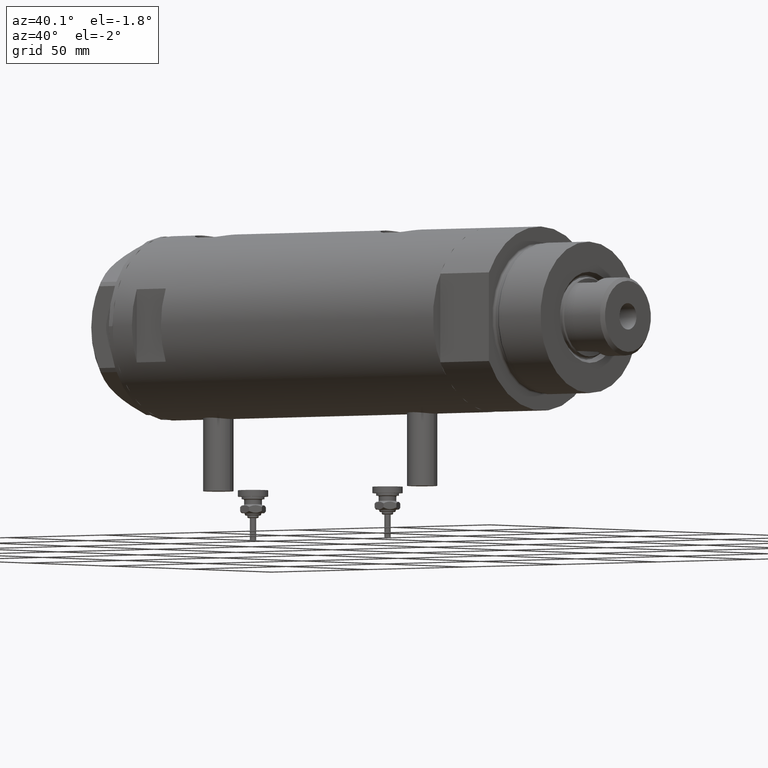
[diagram: clean part render]
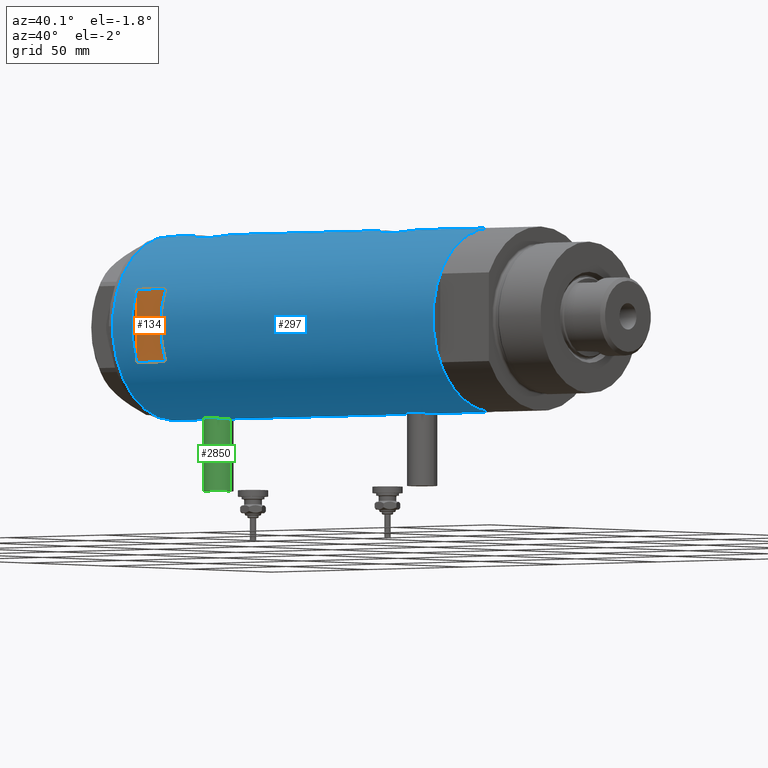
[diagram: same view with three faces highlighted in distinct colors, each labeled with its STEP entity id]
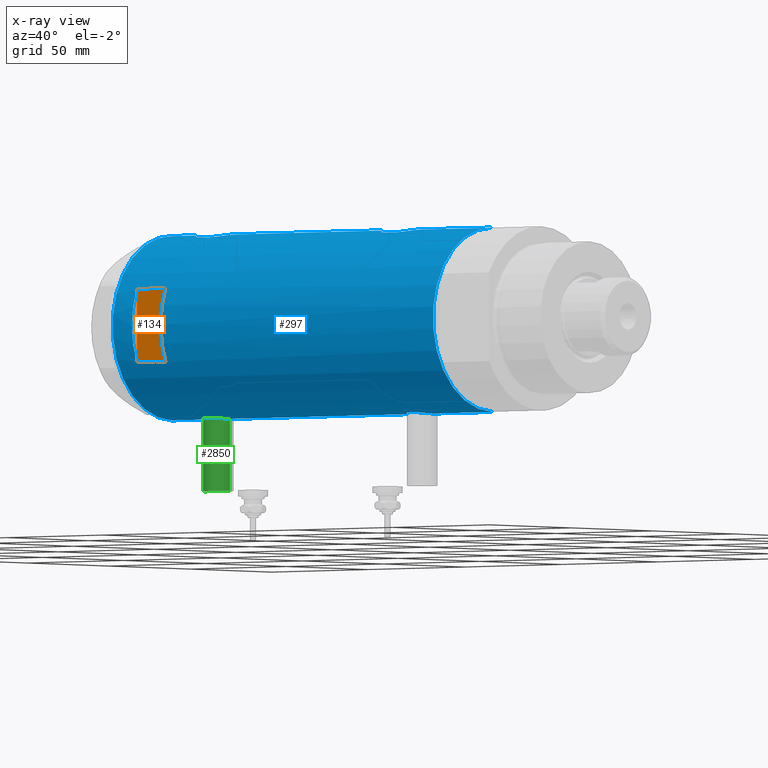
[diagram: x-ray of the same camera — body ghosted, the three highlighted faces saturated]
A machine part, auxiliary view with three faces highlighted in distinct colors.
The next image is the same camera in x-ray (body ghosted, the three faces saturated) — at least one of them is partly hidden behind the body in this view.
Their STEP definitions:

[orange] entity #134 — the highlighted planar face has unit normal (-0, 1, 0).
#134 = ADVANCED_FACE ( 'NONE', ( #2801 ), #2228, .F. ) ;
#329 = EDGE_CURVE ( 'NONE', #1744, #5346, #350, .T. ) ;
#350 = LINE ( 'NONE', #915, #1894 ) ;
#373 = VECTOR ( 'NONE', #2697, 1000.000000000000000 ) ;
#569 = CARTESIAN_POINT ( 'NONE',  ( -14.49137674618942739, -33.50000000000000000, 72.89999999999999147 ) ) ;
#915 = CARTESIAN_POINT ( 'NONE',  ( -36.50000000000000000, -33.50000000000000000, 57.89999999999999147 ) ) ;
#1314 = DIRECTION ( 'NONE',  ( 1.000000000000000000, -0.000000000000000000, -0.000000000000000000 ) ) ;
#1744 = VERTEX_POINT ( 'NONE', #2050 ) ;
#1752 = LINE ( 'NONE', #5413, #373 ) ;
#1778 = CARTESIAN_POINT ( 'NONE',  ( -36.50000000000000000, -33.50000000000000000, 72.89999999999999147 ) ) ;
#1839 = DIRECTION ( 'NONE',  ( 1.000000000000000000, -0.000000000000000000, -0.000000000000000000 ) ) ;
#1894 = VECTOR ( 'NONE', #1314, 1000.000000000000000 ) ;
#1970 = EDGE_CURVE ( 'NONE', #5346, #3064, #1752, .T. ) ;
#2050 = CARTESIAN_POINT ( 'NONE',  ( -14.49137674618942739, -33.50000000000000000, 57.89999999999999147 ) ) ;
#2225 = LINE ( 'NONE', #4998, #5240 ) ;
#2228 = PLANE ( 'NONE',  #2925 ) ;
#2325 = CARTESIAN_POINT ( 'NONE',  ( 14.49137674618942739, -33.50000000000000000, 72.89999999999999147 ) ) ;
#2697 = DIRECTION ( 'NONE',  ( 0.000000000000000000, 0.000000000000000000, 1.000000000000000000 ) ) ;
#2712 = CARTESIAN_POINT ( 'NONE',  ( 14.49137674618942739, -33.50000000000000000, 57.89999999999999147 ) ) ;
#2801 = FACE_OUTER_BOUND ( 'NONE', #4254, .T. ) ;
#2816 = VERTEX_POINT ( 'NONE', #569 ) ;
#2910 = VECTOR ( 'NONE', #1839, 1000.000000000000000 ) ;
#2918 = DIRECTION ( 'NONE',  ( 0.000000000000000000, -0.000000000000000000, 1.000000000000000000 ) ) ;
#2925 = AXIS2_PLACEMENT_3D ( 'NONE', #1778, #4037, #2918 ) ;
#3064 = VERTEX_POINT ( 'NONE', #2325 ) ;
#3330 = ORIENTED_EDGE ( 'NONE', *, *, #329, .T. ) ;
#3909 = ORIENTED_EDGE ( 'NONE', *, *, #4924, .F. ) ;
#4033 = DIRECTION ( 'NONE',  ( -0.000000000000000000, -0.000000000000000000, -1.000000000000000000 ) ) ;
#4037 = DIRECTION ( 'NONE',  ( 0.000000000000000000, 1.000000000000000000, 0.000000000000000000 ) ) ;
#4254 = EDGE_LOOP ( 'NONE', ( #4997, #3330, #5481, #3909 ) ) ;
#4556 = CARTESIAN_POINT ( 'NONE',  ( -36.50000000000000000, -33.50000000000000000, 72.89999999999999147 ) ) ;
#4924 = EDGE_CURVE ( 'NONE', #2816, #3064, #5476, .T. ) ;
#4997 = ORIENTED_EDGE ( 'NONE', *, *, #5229, .T. ) ;
#4998 = CARTESIAN_POINT ( 'NONE',  ( -14.49137674618942739, -33.50000000000000000, -82.90000000000000568 ) ) ;
#5229 = EDGE_CURVE ( 'NONE', #2816, #1744, #2225, .T. ) ;
#5240 = VECTOR ( 'NONE', #4033, 1000.000000000000000 ) ;
#5346 = VERTEX_POINT ( 'NONE', #2712 ) ;
#5413 = CARTESIAN_POINT ( 'NONE',  ( 14.49137674618942739, -33.50000000000000000, -82.90000000000000568 ) ) ;
#5476 = LINE ( 'NONE', #4556, #2910 ) ;
#5481 = ORIENTED_EDGE ( 'NONE', *, *, #1970, .T. ) ;

[blue] entity #297 — the highlighted cylindrical surface (partial cylindrical patch) has radius 36.5 mm, axis along (-1, -0, 0).
#74 = CARTESIAN_POINT ( 'NONE',  ( 36.41918031349423757, -2.473644131148924341, -28.39811654536808661 ) ) ;
#88 = B_SPLINE_CURVE_WITH_KNOTS ( 'NONE', 3,
 ( #3689, #3180, #1775, #2534, #3652, #5108, #881, #996, #1834, #1362, #4068, #2693, #3623, #2359, #4186, #935, #4525, #3157 ),
 .UNSPECIFIED., .F., .F.,
 ( 4, 2, 2, 2, 2, 2, 2, 2, 4 ),
 ( -0.01189883390545606184, -0.008924125429092075873, -0.008180448310001064635, -0.007436771190910053397, -0.005949416952728041330, -0.004462062714546030130, -0.002974708476364018930, -0.001487354238182008598, 0.000000000000000000 ),
 .UNSPECIFIED. ) ;
#108 = DIRECTION ( 'NONE',  ( 0.000000000000000000, 0.000000000000000000, 1.000000000000000000 ) ) ;
#120 = ORIENTED_EDGE ( 'NONE', *, *, #1970, .F. ) ;
#122 = VERTEX_POINT ( 'NONE', #3693 ) ;
#125 = CARTESIAN_POINT ( 'NONE',  ( 35.39807338191550201, -8.909271871950332766, -33.44919617267214562 ) ) ;
#160 = CARTESIAN_POINT ( 'NONE',  ( 36.12724769814495573, -5.207618053557751203, -29.55935879511536157 ) ) ;
#163 = VERTEX_POINT ( 'NONE', #704 ) ;
#168 = EDGE_CURVE ( 'NONE', #122, #5836, #3298, .T. ) ;
#187 = CARTESIAN_POINT ( 'NONE',  ( 36.48988302519020976, -0.9927202255321161406, -28.13673010588698631 ) ) ;
#202 = CARTESIAN_POINT ( 'NONE',  ( 35.29999999999999716, -9.282241108697837362, -82.90000000000000568 ) ) ;
#203 = CARTESIAN_POINT ( 'NONE',  ( -35.99695583620881223, -6.039273428153914658, -48.22224444987753600 ) ) ;
#210 = CARTESIAN_POINT ( 'NONE',  ( -36.19666146462961365, -4.704890678739097609, 54.76570140489218375 ) ) ;
#221 = CARTESIAN_POINT ( 'NONE',  ( 35.29999999999999716, -9.282241108697837362, -41.82021504754764862 ) ) ;
#233 = AXIS2_PLACEMENT_3D ( 'NONE', #4261, #3284, #3336 ) ;
#234 = CARTESIAN_POINT ( 'NONE',  ( -36.19666146462958523, -4.704890678739107379, -50.73429859510781625 ) ) ;
#280 = CARTESIAN_POINT ( 'NONE',  ( -36.44621655743048905, -2.016281777336080161, 52.97017023300883665 ) ) ;
#297 = ADVANCED_FACE ( 'NONE', ( #4333, #3413 ), #1127, .T. ) ;
#311 = CARTESIAN_POINT ( 'NONE',  ( -36.39621039793029666, -2.776267550998798850, 64.51430753106778582 ) ) ;
#312 = CARTESIAN_POINT ( 'NONE',  ( 36.18674680775578167, -4.776679548204628922, 66.68892316931247422 ) ) ;
#336 = ORIENTED_EDGE ( 'NONE', *, *, #1621, .F. ) ;
#351 = CARTESIAN_POINT ( 'NONE',  ( 36.50000000000000000, -0.5031001875915698252, 47.89999999999999858 ) ) ;
#355 = DIRECTION ( 'NONE',  ( 0.000000000000000000, 0.000000000000000000, 1.000000000000000000 ) ) ;
#373 = VECTOR ( 'NONE', #2697, 1000.000000000000000 ) ;
#447 = DIRECTION ( 'NONE',  ( 1.000000000000000000, 0.000000000000000000, 0.000000000000000000 ) ) ;
#475 = DIRECTION ( 'NONE',  ( 0.000000000000000000, 0.000000000000000000, 1.000000000000000000 ) ) ;
#508 = CARTESIAN_POINT ( 'NONE',  ( 36.00068527486602221, -6.030855700422095289, 49.90798672872647046 ) ) ;
#569 = CARTESIAN_POINT ( 'NONE',  ( -14.49137674618942739, -33.50000000000000000, 72.89999999999999147 ) ) ;
#582 = CARTESIAN_POINT ( 'NONE',  ( 36.09633718678917091, -5.417295330713080226, -29.69085132654786463 ) ) ;
#583 = LINE ( 'NONE', #2427, #1102 ) ;
#602 = CARTESIAN_POINT ( 'NONE',  ( 35.79638309643554095, -7.141827709208429020, -31.08298073030451292 ) ) ;
#614 = EDGE_CURVE ( 'NONE', #3439, #1837, #2611, .T. ) ;
#632 = CARTESIAN_POINT ( 'NONE',  ( 36.29582892817135331, -3.881628320031160762, 67.12934434534989236 ) ) ;
#634 = CARTESIAN_POINT ( 'NONE',  ( 36.18674680775576746, -4.776679548204623593, -29.31107683068752223 ) ) ;
#655 = CARTESIAN_POINT ( 'NONE',  ( -36.02823773219771653, -5.849994928883562650, -48.80955101485645287 ) ) ;
#661 = CARTESIAN_POINT ( 'NONE',  ( 35.93373217836898448, -6.415110096330619349, 65.58704266355093182 ) ) ;
#680 = EDGE_CURVE ( 'NONE', #3439, #5836, #4505, .T. ) ;
#681 = CARTESIAN_POINT ( 'NONE',  ( -35.98821803976953504, -6.090959022952123547, -45.18426116850582730 ) ) ;
#704 = CARTESIAN_POINT ( 'NONE',  ( 36.50000000000000000, 0.000000000000000000, -82.90000000000000568 ) ) ;
#718 = CARTESIAN_POINT ( 'NONE',  ( -35.98855750525640929, -6.088954600884540547, -48.02430226150165993 ) ) ;
#727 = CARTESIAN_POINT ( 'NONE',  ( 35.29999999999999716, -9.282241108697837362, 61.62021504754764578 ) ) ;
#789 = CARTESIAN_POINT ( 'NONE',  ( -36.36656776002987357, -3.137002187003164799, -41.17863590726366851 ) ) ;
#800 = CARTESIAN_POINT ( 'NONE',  ( -36.50000000000000000, 4.469960816887838430E-15, -82.90000000000000568 ) ) ;
#825 = CARTESIAN_POINT ( 'NONE',  ( -36.44454782745417276, -2.020757099930493350, 64.81785864420996290 ) ) ;
#880 = CARTESIAN_POINT ( 'NONE',  ( -36.46417279006303858, -1.628689148039105250, -40.56246061306183748 ) ) ;
#881 = CARTESIAN_POINT ( 'NONE',  ( 35.83108131285855791, -6.958268797611352419, -45.28630783372827295 ) ) ;
#934 = CARTESIAN_POINT ( 'NONE',  ( 0.000000000000000000, 0.000000000000000000, 72.89999999999999147 ) ) ;
#935 = CARTESIAN_POINT ( 'NONE',  ( 36.48960339336945680, -1.002724032967599488, -48.06224865973496208 ) ) ;
#991 = VERTEX_POINT ( 'NONE', #2920 ) ;
#996 = CARTESIAN_POINT ( 'NONE',  ( 35.93363298843767950, -6.415574104180970849, -45.78651472888893181 ) ) ;
#1032 = EDGE_CURVE ( 'NONE', #5824, #5128, #3024, .T. ) ;
#1062 = DIRECTION ( 'NONE',  ( 0.000000000000000000, 0.000000000000000000, 1.000000000000000000 ) ) ;
#1085 = CARTESIAN_POINT ( 'NONE',  ( -36.35061318816139675, -3.303361544904985347, -51.90964041943019680 ) ) ;
#1102 = VECTOR ( 'NONE', #1961, 1000.000000000000000 ) ;
#1117 = AXIS2_PLACEMENT_3D ( 'NONE', #934, #3597, #447 ) ;
#1119 = CARTESIAN_POINT ( 'NONE',  ( -36.50000000000000000, -0.4082012689449559528, 52.65000000000000568 ) ) ;
#1120 = CARTESIAN_POINT ( 'NONE',  ( 36.34247810649305421, -3.420510937483963065, 67.30986518401726926 ) ) ;
#1127 = CYLINDRICAL_SURFACE ( 'NONE', #1423, 36.50000000000000000 ) ;
#1130 = ORIENTED_EDGE ( 'NONE', *, *, #2977, .T. ) ;
#1150 = CARTESIAN_POINT ( 'NONE',  ( -35.96816095843705341, -6.208699946936208747, -47.42496377127785223 ) ) ;
#1157 = CARTESIAN_POINT ( 'NONE',  ( -35.96816095843706762, -6.208699946936197200, 58.07503622872215487 ) ) ;
#1159 = VERTEX_POINT ( 'NONE', #2387 ) ;
#1244 = VECTOR ( 'NONE', #3077, 1000.000000000000000 ) ;
#1252 = CARTESIAN_POINT ( 'NONE',  ( -36.50000000000000000, 2.196845629780489385E-16, 65.15000000000000568 ) ) ;
#1305 = CARTESIAN_POINT ( 'NONE',  ( -36.43335814606992784, -2.212659578761317469, 64.74876399169507124 ) ) ;
#1318 = CARTESIAN_POINT ( 'NONE',  ( 0.000000000000000000, 0.000000000000000000, 82.90000000000000568 ) ) ;
#1325 = LINE ( 'NONE', #2301, #5264 ) ;
#1341 = CARTESIAN_POINT ( 'NONE',  ( -36.02782481185207075, -5.852531070448503847, 61.10277008952189703 ) ) ;
#1362 = CARTESIAN_POINT ( 'NONE',  ( 36.12792682573228120, -5.214735277442337669, -46.64693117988700521 ) ) ;
#1368 = CARTESIAN_POINT ( 'NONE',  ( 35.72742963626382107, -7.471989379615407323, 51.24937739587225138 ) ) ;
#1369 = CARTESIAN_POINT ( 'NONE',  ( 36.50000000000000000, 0.000000000000000000, -48.10000000000000142 ) ) ;
#1400 = VERTEX_POINT ( 'NONE', #221 ) ;
#1423 = AXIS2_PLACEMENT_3D ( 'NONE', #3853, #4325, #3255 ) ;
#1447 = VERTEX_POINT ( 'NONE', #2522 ) ;
#1465 = ORIENTED_EDGE ( 'NONE', *, *, #4054, .F. ) ;
#1470 = VERTEX_POINT ( 'NONE', #1758 ) ;
#1476 = CARTESIAN_POINT ( 'NONE',  ( 36.34184199234172041, -3.427106516421254412, 48.49259086319967338 ) ) ;
#1503 = DIRECTION ( 'NONE',  ( 0.000000000000000000, 0.000000000000000000, 1.000000000000000000 ) ) ;
#1518 = AXIS2_PLACEMENT_3D ( 'NONE', #1318, #355, #2238 ) ;
#1541 = CARTESIAN_POINT ( 'NONE',  ( -36.46614432713122511, -1.622933015999966200, -52.64966597386846558 ) ) ;
#1568 = CARTESIAN_POINT ( 'NONE',  ( 36.44931971524464842, -1.985988150549293341, 67.71366860531763621 ) ) ;
#1596 = CARTESIAN_POINT ( 'NONE',  ( -36.49315367594273596, -0.8144497809045464498, -52.81039785554752086 ) ) ;
#1604 = CARTESIAN_POINT ( 'NONE',  ( -36.01675918113430441, -5.920026275461276910, 56.88560443482112561 ) ) ;
#1621 = EDGE_CURVE ( 'NONE', #5151, #1159, #1955, .T. ) ;
#1660 = CARTESIAN_POINT ( 'NONE',  ( -36.02823773219771653, -5.849994928883547551, 56.69044898514355424 ) ) ;
#1661 = CARTESIAN_POINT ( 'NONE',  ( 36.21540437201188922, -4.554727782332259167, 66.80597629088626377 ) ) ;
#1691 = CARTESIAN_POINT ( 'NONE',  ( -35.98821803976955636, -6.090959022952108448, 60.31573883149418691 ) ) ;
#1744 = VERTEX_POINT ( 'NONE', #2050 ) ;
#1752 = LINE ( 'NONE', #5413, #373 ) ;
#1758 = CARTESIAN_POINT ( 'NONE',  ( -36.50000000000000000, 4.469960816887838430E-15, -82.90000000000000568 ) ) ;
#1775 = CARTESIAN_POINT ( 'NONE',  ( 35.52320828895290106, -8.411622242316138198, -43.59772865944614040 ) ) ;
#1781 = CARTESIAN_POINT ( 'NONE',  ( -36.09514898390869320, -5.426114745500152381, 62.02838652946137188 ) ) ;
#1816 = CARTESIAN_POINT ( 'NONE',  ( 35.29999999999999716, -9.282241108697837362, 54.17978495245235138 ) ) ;
#1834 = CARTESIAN_POINT ( 'NONE',  ( 36.00068527486602221, -6.030855700422095289, -46.09201327127355086 ) ) ;
#1837 = VERTEX_POINT ( 'NONE', #3498 ) ;
#1864 = CARTESIAN_POINT ( 'NONE',  ( 35.93363298843767950, -6.415574104180970849, 50.21348527111108240 ) ) ;
#1898 = VERTEX_POINT ( 'NONE', #1369 ) ;
#1912 = CARTESIAN_POINT ( 'NONE',  ( 36.50000000000000000, 0.000000000000000000, -82.90000000000000568 ) ) ;
#1949 = LINE ( 'NONE', #2031, #5364 ) ;
#1955 = B_SPLINE_CURVE_WITH_KNOTS ( 'NONE', 3,
 ( #2898, #3735, #187, #5572, #74, #2345, #4172, #5662, #634, #160, #582, #2785, #3313, #602, #3227, #4228, #125, #5606 ),
 .UNSPECIFIED., .F., .F.,
 ( 4, 2, 2, 2, 2, 2, 2, 2, 4 ),
 ( 0.01190956515753144491, 0.01339852714138289880, 0.01488748912523435095, 0.01637645110908580309, 0.01712093210101153090, 0.01786541309293725524, 0.01935437507678869698, 0.02084333706064013872, 0.02382126102834301179 ),
 .UNSPECIFIED. ) ;
#1961 = DIRECTION ( 'NONE',  ( 0.000000000000000000, 0.000000000000000000, 1.000000000000000000 ) ) ;
#1970 = EDGE_CURVE ( 'NONE', #5346, #3064, #1752, .T. ) ;
#1974 = VECTOR ( 'NONE', #108, 1000.000000000000000 ) ;
#2026 = CARTESIAN_POINT ( 'NONE',  ( 36.50000000000000000, 0.000000000000000000, 82.90000000000000568 ) ) ;
#2031 = CARTESIAN_POINT ( 'NONE',  ( 35.29999999999999716, -9.282241108697837362, -82.90000000000000568 ) ) ;
#2039 = CARTESIAN_POINT ( 'NONE',  ( -36.50000000000000000, 7.463603853851042361E-16, -40.34999999999999432 ) ) ;
#2047 = CARTESIAN_POINT ( 'NONE',  ( -36.39558535855675103, -2.764807686267996001, 53.29105881454392346 ) ) ;
#2050 = CARTESIAN_POINT ( 'NONE',  ( -14.49137674618942739, -33.50000000000000000, 57.89999999999999147 ) ) ;
#2071 = CARTESIAN_POINT ( 'NONE',  ( -36.01639592019626690, -5.922235714778424587, -44.59203197573086186 ) ) ;
#2078 = CARTESIAN_POINT ( 'NONE',  ( -36.16096637594733210, -4.968588355849251847, 55.08665507182242749 ) ) ;
#2099 = CARTESIAN_POINT ( 'NONE',  ( 36.50000000000000000, 0.000000000000000000, -82.90000000000000568 ) ) ;
#2112 = CARTESIAN_POINT ( 'NONE',  ( 35.52323553852026095, -8.411295122831241144, 63.39752392951088211 ) ) ;
#2116 = LINE ( 'NONE', #800, #3757 ) ;
#2128 = ORIENTED_EDGE ( 'NONE', *, *, #5103, .T. ) ;
#2130 = ORIENTED_EDGE ( 'NONE', *, *, #4771, .F. ) ;
#2133 = CARTESIAN_POINT ( 'NONE',  ( -36.19599073318030946, -4.702920041824402375, -42.47846168323421523 ) ) ;
#2138 = CARTESIAN_POINT ( 'NONE',  ( 35.79638309643554805, -7.141827709208436126, 64.91701926969550129 ) ) ;
#2147 = CARTESIAN_POINT ( 'NONE',  ( 36.50000000000000000, 4.344604608721388599E-19, 67.90000000000000568 ) ) ;
#2162 = CARTESIAN_POINT ( 'NONE',  ( -36.50000000000000711, -0.4136690418839297223, -40.35000000000000853 ) ) ;
#2181 = CARTESIAN_POINT ( 'NONE',  ( 36.50000000000000000, 0.000000000000000000, 47.89999999999999858 ) ) ;
#2205 = CARTESIAN_POINT ( 'NONE',  ( -36.14410773716529945, -5.085921866747741049, 62.53835878420471772 ) ) ;
#2225 = LINE ( 'NONE', #4998, #5240 ) ;
#2229 = CARTESIAN_POINT ( 'NONE',  ( -36.21356728133256553, -4.566014386638760136, 63.17262660764745874 ) ) ;
#2238 = DIRECTION ( 'NONE',  ( 1.000000000000000000, 0.000000000000000000, 0.000000000000000000 ) ) ;
#2250 = CARTESIAN_POINT ( 'NONE',  ( -36.50000000000000000, 7.463603853851042361E-16, -40.34999999999999432 ) ) ;
#2254 = CARTESIAN_POINT ( 'NONE',  ( -36.06543684817879836, -5.617774235967360141, 61.66954447971700404 ) ) ;
#2283 = CIRCLE ( 'NONE', #4282, 36.50000000000000000 ) ;
#2301 = CARTESIAN_POINT ( 'NONE',  ( -36.50000000000000000, 4.469960816887838430E-15, -82.90000000000000568 ) ) ;
#2313 = CARTESIAN_POINT ( 'NONE',  ( 35.52320828895290106, -8.411622242316138198, 52.40227134055386671 ) ) ;
#2325 = CARTESIAN_POINT ( 'NONE',  ( 14.49137674618942739, -33.50000000000000000, 72.89999999999999147 ) ) ;
#2333 = EDGE_CURVE ( 'NONE', #3745, #1447, #4731, .T. ) ;
#2345 = CARTESIAN_POINT ( 'NONE',  ( 36.34247810649306132, -3.420510937483960845, -28.69013481598272719 ) ) ;
#2359 = CARTESIAN_POINT ( 'NONE',  ( 36.41856252531823657, -2.482507212621167358, -47.79956512846506200 ) ) ;
#2383 = EDGE_CURVE ( 'NONE', #1470, #163, #2283, .T. ) ;
#2385 = CARTESIAN_POINT ( 'NONE',  ( -36.36635911126388976, -3.125815113635431075, 53.48394399592097415 ) ) ;
#2387 = CARTESIAN_POINT ( 'NONE',  ( 35.29999999999999716, -9.282241108697837362, -34.37978495245235422 ) ) ;
#2427 = CARTESIAN_POINT ( 'NONE',  ( -36.50000000000000000, 4.469960816887838430E-15, -82.90000000000000568 ) ) ;
#2453 = ORIENTED_EDGE ( 'NONE', *, *, #2740, .F. ) ;
#2457 = CARTESIAN_POINT ( 'NONE',  ( 35.72583162417571145, -7.484316398521971614, 64.55042643719502848 ) ) ;
#2465 = ORIENTED_EDGE ( 'NONE', *, *, #2879, .T. ) ;
#2478 = CARTESIAN_POINT ( 'NONE',  ( -35.96095902952615830, -6.249754054240904466, -47.01658765420470587 ) ) ;
#2484 = CARTESIAN_POINT ( 'NONE',  ( -36.30176144752230982, -3.814344296723633843, 53.93198298049745176 ) ) ;
#2503 = LINE ( 'NONE', #202, #3664 ) ;
#2504 = CARTESIAN_POINT ( 'NONE',  ( -35.99659093586380720, -6.041447834568803188, -44.98577587985177217 ) ) ;
#2506 = DIRECTION ( 'NONE',  ( 0.000000000000000000, 0.000000000000000000, 1.000000000000000000 ) ) ;
#2512 = CARTESIAN_POINT ( 'NONE',  ( 36.00092304812866928, -6.029438422680412302, 65.89308155573651504 ) ) ;
#2522 = CARTESIAN_POINT ( 'NONE',  ( 36.50000000000000000, 0.000000000000000000, 47.89999999999999858 ) ) ;
#2529 = LINE ( 'NONE', #2099, #4391 ) ;
#2534 = CARTESIAN_POINT ( 'NONE',  ( 35.69273631926343882, -7.635692914629145456, -44.56200195651491214 ) ) ;
#2537 = CARTESIAN_POINT ( 'NONE',  ( -35.96087392089862078, -6.250243747806522698, -46.19082509223819244 ) ) ;
#2545 = CARTESIAN_POINT ( 'NONE',  ( -35.99695583620880512, -6.039273428153901335, 57.27775555012245690 ) ) ;
#2611 = B_SPLINE_CURVE_WITH_KNOTS ( 'NONE', 3,
 ( #4780, #3847, #4875, #1568, #5678, #1120, #632, #1661, #312, #4319, #2895, #2512, #661, #2138, #2457, #2112, #3496, #727 ),
 .UNSPECIFIED., .F., .F.,
 ( 4, 2, 2, 2, 2, 2, 2, 2, 4 ),
 ( 0.01190956515753144838, 0.01339852714138287625, 0.01488748912523430584, 0.01637645110908573370, 0.01712093210101144763, 0.01786541309293716503, 0.01935437507678861718, 0.02084333706064007280, 0.02382126102834301526 ),
 .UNSPECIFIED. ) ;
#2620 = CARTESIAN_POINT ( 'NONE',  ( 36.44881677724179525, -1.995085670027224811, 48.08819654630536178 ) ) ;
#2692 = CARTESIAN_POINT ( 'NONE',  ( -36.49297138689432529, -0.8222528563518524125, -40.39066887946565743 ) ) ;
#2693 = CARTESIAN_POINT ( 'NONE',  ( 36.29527920868844859, -3.886508670267140975, -47.32716275830865982 ) ) ;
#2697 = DIRECTION ( 'NONE',  ( 0.000000000000000000, 0.000000000000000000, 1.000000000000000000 ) ) ;
#2712 = CARTESIAN_POINT ( 'NONE',  ( 14.49137674618942739, -33.50000000000000000, 57.89999999999999147 ) ) ;
#2740 = EDGE_CURVE ( 'NONE', #1400, #1898, #88, .T. ) ;
#2785 = CARTESIAN_POINT ( 'NONE',  ( 36.00092304812866928, -6.029438422680413190, -30.10691844426349562 ) ) ;
#2792 = ORIENTED_EDGE ( 'NONE', *, *, #614, .F. ) ;
#2804 = CARTESIAN_POINT ( 'NONE',  ( 36.29527920868844859, -3.886508670267140975, 48.67283724169136860 ) ) ;
#2816 = VERTEX_POINT ( 'NONE', #569 ) ;
#2825 = CARTESIAN_POINT ( 'NONE',  ( -36.50000000000000000, 4.469960493369248271E-15, 52.65000000000001279 ) ) ;
#2853 = EDGE_LOOP ( 'NONE', ( #1465, #5707, #1130, #2453, #2465, #336, #3178, #5641, #2128, #2792, #5093, #3754, #4226, #2130, #3917, #4712 ) ) ;
#2879 = EDGE_CURVE ( 'NONE', #1400, #1159, #1949, .T. ) ;
#2895 = CARTESIAN_POINT ( 'NONE',  ( 36.09633718678917802, -5.417295330713079338, 66.30914867345214248 ) ) ;
#2898 = CARTESIAN_POINT ( 'NONE',  ( 36.50000000000000000, 4.344611676915099379E-19, -28.10000000000000142 ) ) ;
#2920 = CARTESIAN_POINT ( 'NONE',  ( -36.50000000000000000, 2.196845629780489385E-16, 65.15000000000000568 ) ) ;
#2929 = CARTESIAN_POINT ( 'NONE',  ( -36.40915499150420231, -2.580495338846549025, 53.20394986644524238 ) ) ;
#2958 = LINE ( 'NONE', #1912, #1974 ) ;
#2977 = EDGE_CURVE ( 'NONE', #163, #1898, #2529, .T. ) ;
#2981 = ORIENTED_EDGE ( 'NONE', *, *, #5229, .F. ) ;
#3018 = CARTESIAN_POINT ( 'NONE',  ( -36.26616882068471881, -4.135065845178862887, 63.60415055940097062 ) ) ;
#3024 = B_SPLINE_CURVE_WITH_KNOTS ( 'NONE', 3,
 ( #4285, #3426, #1596, #1541, #3785, #3812, #3914, #5223, #1085, #3328, #4340, #234, #5195, #5674, #4798, #655, #3388, #203, #718, #1150, #2478, #2537, #4311, #681, #2504, #2071, #3879, #4375, #5740, #5286, #5917, #2133, #3980, #3071, #4066, #789, #3044, #4437, #5795, #880, #5469, #2692, #2162, #2250 ),
 .UNSPECIFIED., .F., .F.,
 ( 4, 2, 2, 2, 2, 2, 2, 2, 2, 2, 2, 2, 2, 2, 2, 2, 2, 2, 2, 2, 2, 4 ),
 ( 0.01957644481942644524, 0.02079966591703048817, 0.02202288701463452764, 0.02263449756343654390, 0.02324610811223856363, 0.02446932920984259616, 0.02569255030744663215, 0.02691577140505066468, 0.02752738195385267400, 0.02813899250265468333, 0.02936221360025868116, 0.03058543469786267552, 0.03119704524666467443, 0.03180865579546667682, 0.03303187689307068853, 0.03364348744187271173, 0.03425509799067472799, 0.03547831908827876746, 0.03670154018588280692, 0.03731315073468483012, 0.03792476128348684639, 0.03914798238109087891 ),
 .UNSPECIFIED. ) ;
#3044 = CARTESIAN_POINT ( 'NONE',  ( -36.39621039793030377, -2.776267550998805511, -40.98569246893223550 ) ) ;
#3064 = VERTEX_POINT ( 'NONE', #2325 ) ;
#3071 = CARTESIAN_POINT ( 'NONE',  ( -36.26616882068469749, -4.135065845178866439, -41.89584944059903648 ) ) ;
#3077 = DIRECTION ( 'NONE',  ( 0.000000000000000000, 0.000000000000000000, 1.000000000000000000 ) ) ;
#3157 = CARTESIAN_POINT ( 'NONE',  ( 36.50000000000000000, 0.000000000000000000, -48.10000000000000142 ) ) ;
#3162 = CARTESIAN_POINT ( 'NONE',  ( 35.83108131285855791, -6.958268797611352419, 50.71369216627174126 ) ) ;
#3167 = EDGE_CURVE ( 'NONE', #5128, #3566, #1325, .T. ) ;
#3178 = ORIENTED_EDGE ( 'NONE', *, *, #4761, .T. ) ;
#3180 = CARTESIAN_POINT ( 'NONE',  ( 35.39794035667549821, -8.909777761736840773, -42.74954159089456596 ) ) ;
#3222 = ORIENTED_EDGE ( 'NONE', *, *, #3819, .F. ) ;
#3227 = CARTESIAN_POINT ( 'NONE',  ( 35.72583162417571145, -7.484316398521975167, -31.44957356280499283 ) ) ;
#3255 = DIRECTION ( 'NONE',  ( 1.000000000000000000, 0.000000000000000000, 0.000000000000000000 ) ) ;
#3272 = CARTESIAN_POINT ( 'NONE',  ( 36.41856252531823657, -2.482507212621167358, 48.20043487153495931 ) ) ;
#3284 = DIRECTION ( 'NONE',  ( -0.000000000000000000, -4.625929269271492422E-15, 1.000000000000000000 ) ) ;
#3298 = CIRCLE ( 'NONE', #1518, 36.50000000000000000 ) ;
#3313 = CARTESIAN_POINT ( 'NONE',  ( 35.93373217836898448, -6.415110096330614020, -30.41295733644907173 ) ) ;
#3328 = CARTESIAN_POINT ( 'NONE',  ( -36.30176144752230272, -3.814344296723641836, -51.56801701950257666 ) ) ;
#3329 = DIRECTION ( 'NONE',  ( 1.000000000000000000, 0.000000000000000000, 0.000000000000000000 ) ) ;
#3336 = DIRECTION ( 'NONE',  ( 1.776356839400250465E-15, 1.000000000000000000, 4.562560375171875891E-15 ) ) ;
#3349 = EDGE_LOOP ( 'NONE', ( #3222, #2981, #4963, #120 ) ) ;
#3357 = CARTESIAN_POINT ( 'NONE',  ( -36.35061318816141096, -3.303361544904979574, 53.59035958056982452 ) ) ;
#3388 = CARTESIAN_POINT ( 'NONE',  ( -36.01675918113430441, -5.920026275461289345, -48.61439556517890281 ) ) ;
#3413 = FACE_BOUND ( 'NONE', #3349, .T. ) ;
#3426 = CARTESIAN_POINT ( 'NONE',  ( -36.49999999999999289, -0.4082012689449579512, -52.85000000000000853 ) ) ;
#3433 = CARTESIAN_POINT ( 'NONE',  ( -35.96794010939611042, -6.209972807992070187, 59.71555548991352680 ) ) ;
#3439 = VERTEX_POINT ( 'NONE', #2147 ) ;
#3459 = CARTESIAN_POINT ( 'NONE',  ( -35.96095902952617251, -6.249754054240892920, 58.48341234579529413 ) ) ;
#3495 = CARTESIAN_POINT ( 'NONE',  ( -36.49297138689432529, -0.8222528563518540778, 65.10933112053433547 ) ) ;
#3496 = CARTESIAN_POINT ( 'NONE',  ( 35.39807338191550201, -8.909271871950330990, 62.55080382732786148 ) ) ;
#3498 = CARTESIAN_POINT ( 'NONE',  ( 35.29999999999999716, -9.282241108697837362, 61.62021504754764578 ) ) ;
#3566 = VERTEX_POINT ( 'NONE', #5012 ) ;
#3597 = DIRECTION ( 'NONE',  ( -0.000000000000000000, 0.000000000000000000, -1.000000000000000000 ) ) ;
#3623 = CARTESIAN_POINT ( 'NONE',  ( 36.34184199234172041, -3.427106516421254412, -47.50740913680033373 ) ) ;
#3652 = CARTESIAN_POINT ( 'NONE',  ( 35.72742963626382107, -7.471989379615407323, -44.75062260412776283 ) ) ;
#3664 = VECTOR ( 'NONE', #1062, 1000.000000000000000 ) ;
#3689 = CARTESIAN_POINT ( 'NONE',  ( 35.29999999999999716, -9.282241108697837362, -41.82021504754764862 ) ) ;
#3693 = CARTESIAN_POINT ( 'NONE',  ( -36.50000000000000000, 4.469960816887838430E-15, 82.90000000000000568 ) ) ;
#3710 = CARTESIAN_POINT ( 'NONE',  ( -36.50000000000000000, 4.469960493366092827E-15, -52.85000000000000853 ) ) ;
#3735 = CARTESIAN_POINT ( 'NONE',  ( 36.50000000000000000, -0.4962708696651104701, -28.10000000000000853 ) ) ;
#3743 = EDGE_CURVE ( 'NONE', #991, #122, #583, .T. ) ;
#3745 = VERTEX_POINT ( 'NONE', #4173 ) ;
#3754 = ORIENTED_EDGE ( 'NONE', *, *, #168, .F. ) ;
#3757 = VECTOR ( 'NONE', #5779, 1000.000000000000000 ) ;
#3785 = CARTESIAN_POINT ( 'NONE',  ( -36.44621655743048905, -2.016281777336084158, -52.52982976699116335 ) ) ;
#3812 = CARTESIAN_POINT ( 'NONE',  ( -36.40915499150420231, -2.580495338846554354, -52.29605013355477183 ) ) ;
#3819 = EDGE_CURVE ( 'NONE', #1744, #5346, #3854, .T. ) ;
#3841 = CARTESIAN_POINT ( 'NONE',  ( 0.000000000000000000, 0.000000000000000000, -82.90000000000000568 ) ) ;
#3846 = CARTESIAN_POINT ( 'NONE',  ( -36.09582946723049446, -5.421573071064185179, 55.76391721629512688 ) ) ;
#3847 = CARTESIAN_POINT ( 'NONE',  ( 36.50000000000000000, -0.4962708696651115803, 67.90000000000000568 ) ) ;
#3853 = CARTESIAN_POINT ( 'NONE',  ( 0.000000000000000000, 0.000000000000000000, -82.90000000000000568 ) ) ;
#3854 = CIRCLE ( 'NONE', #233, 36.50000000000000000 ) ;
#3879 = CARTESIAN_POINT ( 'NONE',  ( -36.02782481185207075, -5.852531070448518058, -44.39722991047811718 ) ) ;
#3914 = CARTESIAN_POINT ( 'NONE',  ( -36.39558535855673682, -2.764807686268002218, -52.20894118545612628 ) ) ;
#3917 = ORIENTED_EDGE ( 'NONE', *, *, #3167, .F. ) ;
#3947 = CARTESIAN_POINT ( 'NONE',  ( -35.99659093586380010, -6.041447834568789865, 60.51422412014822783 ) ) ;
#3980 = CARTESIAN_POINT ( 'NONE',  ( -36.21356728133256553, -4.566014386638768130, -42.32737339235254126 ) ) ;
#4008 = CARTESIAN_POINT ( 'NONE',  ( 36.50000000000000000, 4.344611676915099379E-19, -28.10000000000000142 ) ) ;
#4014 = CARTESIAN_POINT ( 'NONE',  ( -36.30107494031871340, -3.820993528321226851, 63.86306153536310148 ) ) ;
#4033 = DIRECTION ( 'NONE',  ( -0.000000000000000000, -0.000000000000000000, -1.000000000000000000 ) ) ;
#4054 = EDGE_CURVE ( 'NONE', #1470, #5824, #2116, .T. ) ;
#4066 = CARTESIAN_POINT ( 'NONE',  ( -36.30107494031870630, -3.820993528321237509, -41.63693846463691983 ) ) ;
#4068 = CARTESIAN_POINT ( 'NONE',  ( 36.18850502651836365, -4.779575967213807175, -46.89779152890154279 ) ) ;
#4158 = CARTESIAN_POINT ( 'NONE',  ( 36.12792682573228120, -5.214735277442337669, 49.35306882011299479 ) ) ;
#4172 = CARTESIAN_POINT ( 'NONE',  ( 36.29582892817134621, -3.881628320031158097, -28.87065565465010408 ) ) ;
#4173 = CARTESIAN_POINT ( 'NONE',  ( 35.29999999999999716, -9.282241108697837362, 54.17978495245235138 ) ) ;
#4186 = CARTESIAN_POINT ( 'NONE',  ( 36.44881677724179525, -1.995085670027224811, -47.91180345369464533 ) ) ;
#4192 = CARTESIAN_POINT ( 'NONE',  ( 35.39794035667549821, -8.909777761736840773, 53.25045840910545536 ) ) ;
#4226 = ORIENTED_EDGE ( 'NONE', *, *, #3743, .F. ) ;
#4228 = CARTESIAN_POINT ( 'NONE',  ( 35.52323553852026095, -8.411295122831244697, -32.60247607048910368 ) ) ;
#4261 = CARTESIAN_POINT ( 'NONE',  ( 0.000000000000000000, 0.000000000000000000, 57.90000000000014779 ) ) ;
#4282 = AXIS2_PLACEMENT_3D ( 'NONE', #3841, #2506, #3329 ) ;
#4285 = CARTESIAN_POINT ( 'NONE',  ( -36.50000000000000000, 4.469960493366092827E-15, -52.85000000000000853 ) ) ;
#4311 = CARTESIAN_POINT ( 'NONE',  ( -35.96794010939611042, -6.209972807992086175, -45.78444451008647320 ) ) ;
#4316 = B_SPLINE_CURVE_WITH_KNOTS ( 'NONE', 3,
 ( #2825, #1119, #5290, #4317, #280, #2929, #2047, #2385, #3357, #2484, #4779, #210, #2078, #3846, #5710, #1660, #1604, #2545, #5265, #1157, #3459, #5319, #3433, #1691, #3947, #5803, #1341, #2254, #1781, #2205, #4416, #4977, #2229, #3018, #4014, #5868, #311, #1305, #825, #5444, #5892, #3495, #5358, #1252 ),
 .UNSPECIFIED., .F., .F.,
 ( 4, 2, 2, 2, 2, 2, 2, 2, 2, 2, 2, 2, 2, 2, 2, 2, 2, 2, 2, 2, 2, 4 ),
 ( 0.01957644481942640707, 0.02079966591703042919, 0.02202288701463445131, 0.02263449756343646410, 0.02324610811223847689, 0.02446932920984250248, 0.02569255030744652807, 0.02691577140505055366, 0.02752738195385255604, 0.02813899250265455843, 0.02936221360025858054, 0.03058543469786260266, 0.03119704524666461545, 0.03180865579546662825, 0.03303187689307066771, 0.03364348744187267704, 0.03425509799067469330, 0.03547831908827872582, 0.03670154018588275141, 0.03731315073468476073, 0.03792476128348677700, 0.03914798238109080952 ),
 .UNSPECIFIED. ) ;
#4317 = CARTESIAN_POINT ( 'NONE',  ( -36.46614432713123932, -1.622933015999963979, 52.85033402613154863 ) ) ;
#4319 = CARTESIAN_POINT ( 'NONE',  ( 36.12724769814495573, -5.207618053557753868, 66.44064120488465619 ) ) ;
#4325 = DIRECTION ( 'NONE',  ( 0.000000000000000000, 0.000000000000000000, 1.000000000000000000 ) ) ;
#4333 = FACE_OUTER_BOUND ( 'NONE', #2853, .T. ) ;
#4340 = CARTESIAN_POINT ( 'NONE',  ( -36.26692673949090562, -4.128477002029516285, -51.30999987432166876 ) ) ;
#4375 = CARTESIAN_POINT ( 'NONE',  ( -36.06543684817881257, -5.617774235967372576, -43.83045552028299596 ) ) ;
#4391 = VECTOR ( 'NONE', #4926, 1000.000000000000000 ) ;
#4416 = CARTESIAN_POINT ( 'NONE',  ( -36.16125812922425098, -4.962923794285019063, 62.70446085910759138 ) ) ;
#4437 = CARTESIAN_POINT ( 'NONE',  ( -36.43335814606994205, -2.212659578761328127, -40.75123600830492165 ) ) ;
#4450 = CARTESIAN_POINT ( 'NONE',  ( 36.48960339336945680, -1.002724032967599488, 47.93775134026500950 ) ) ;
#4505 = LINE ( 'NONE', #4528, #1244 ) ;
#4525 = CARTESIAN_POINT ( 'NONE',  ( 36.50000000000000000, -0.5031001875915698252, -48.09999999999999432 ) ) ;
#4528 = CARTESIAN_POINT ( 'NONE',  ( 36.50000000000000000, 0.000000000000000000, -82.90000000000000568 ) ) ;
#4594 = CARTESIAN_POINT ( 'NONE',  ( 35.79656810172927806, -7.133411935499478496, 50.88745121442323693 ) ) ;
#4712 = ORIENTED_EDGE ( 'NONE', *, *, #1032, .F. ) ;
#4731 = B_SPLINE_CURVE_WITH_KNOTS ( 'NONE', 3,
 ( #1816, #4192, #2313, #5059, #1368, #4594, #3162, #1864, #508, #4158, #5113, #2804, #1476, #3272, #2620, #4450, #351, #2181 ),
 .UNSPECIFIED., .F., .F.,
 ( 4, 2, 2, 2, 2, 2, 2, 2, 4 ),
 ( -0.01189883390545606184, -0.008924125429092075873, -0.008180448310001064635, -0.007436771190910053397, -0.005949416952728041330, -0.004462062714546030130, -0.002974708476364018930, -0.001487354238182008598, 0.000000000000000000 ),
 .UNSPECIFIED. ) ;
#4761 = EDGE_CURVE ( 'NONE', #5151, #1447, #2958, .T. ) ;
#4771 = EDGE_CURVE ( 'NONE', #3566, #991, #4316, .T. ) ;
#4779 = CARTESIAN_POINT ( 'NONE',  ( -36.26692673949090562, -4.128477002029507403, 54.19000012567833835 ) ) ;
#4780 = CARTESIAN_POINT ( 'NONE',  ( 36.50000000000000000, 4.344604608721388599E-19, 67.90000000000000568 ) ) ;
#4798 = CARTESIAN_POINT ( 'NONE',  ( -36.06605150775667568, -5.613853192123352542, -49.37765688272543940 ) ) ;
#4843 = CIRCLE ( 'NONE', #1117, 36.50000000000000000 ) ;
#4875 = CARTESIAN_POINT ( 'NONE',  ( 36.48988302519020266, -0.9927202255321159186, 67.86326989411300303 ) ) ;
#4926 = DIRECTION ( 'NONE',  ( 0.000000000000000000, 0.000000000000000000, 1.000000000000000000 ) ) ;
#4963 = ORIENTED_EDGE ( 'NONE', *, *, #5365, .F. ) ;
#4977 = CARTESIAN_POINT ( 'NONE',  ( -36.19599073318029525, -4.702920041824397934, 63.02153831676577056 ) ) ;
#4998 = CARTESIAN_POINT ( 'NONE',  ( -14.49137674618942739, -33.50000000000000000, -82.90000000000000568 ) ) ;
#5012 = CARTESIAN_POINT ( 'NONE',  ( -36.50000000000000000, 4.469960493369248271E-15, 52.65000000000001279 ) ) ;
#5059 = CARTESIAN_POINT ( 'NONE',  ( 35.69273631926343882, -7.635692914629145456, 51.43799804348507365 ) ) ;
#5093 = ORIENTED_EDGE ( 'NONE', *, *, #680, .T. ) ;
#5103 = EDGE_CURVE ( 'NONE', #3745, #1837, #2503, .T. ) ;
#5108 = CARTESIAN_POINT ( 'NONE',  ( 35.79656810172927806, -7.133411935499478496, -45.11254878557677728 ) ) ;
#5113 = CARTESIAN_POINT ( 'NONE',  ( 36.18850502651836365, -4.779575967213807175, 49.10220847109845721 ) ) ;
#5128 = VERTEX_POINT ( 'NONE', #2039 ) ;
#5151 = VERTEX_POINT ( 'NONE', #4008 ) ;
#5195 = CARTESIAN_POINT ( 'NONE',  ( -36.16096637594732499, -4.968588355849264282, -50.41334492817760093 ) ) ;
#5223 = CARTESIAN_POINT ( 'NONE',  ( -36.36635911126386844, -3.125815113635437736, -52.01605600407904006 ) ) ;
#5229 = EDGE_CURVE ( 'NONE', #2816, #1744, #2225, .T. ) ;
#5240 = VECTOR ( 'NONE', #4033, 1000.000000000000000 ) ;
#5264 = VECTOR ( 'NONE', #475, 1000.000000000000000 ) ;
#5265 = CARTESIAN_POINT ( 'NONE',  ( -35.98855750525641639, -6.088954600884528112, 57.47569773849836139 ) ) ;
#5286 = CARTESIAN_POINT ( 'NONE',  ( -36.14410773716529235, -5.085921866747748155, -42.96164121579527517 ) ) ;
#5290 = CARTESIAN_POINT ( 'NONE',  ( -36.49315367594273596, -0.8144497809045454506, 52.68960214445250045 ) ) ;
#5319 = CARTESIAN_POINT ( 'NONE',  ( -35.96087392089862789, -6.250243747806507599, 59.30917490776180045 ) ) ;
#5346 = VERTEX_POINT ( 'NONE', #2712 ) ;
#5358 = CARTESIAN_POINT ( 'NONE',  ( -36.50000000000000000, -0.4136690418839307215, 65.15000000000001990 ) ) ;
#5364 = VECTOR ( 'NONE', #1503, 1000.000000000000000 ) ;
#5365 = EDGE_CURVE ( 'NONE', #3064, #2816, #4843, .T. ) ;
#5413 = CARTESIAN_POINT ( 'NONE',  ( 14.49137674618942739, -33.50000000000000000, -82.90000000000000568 ) ) ;
#5444 = CARTESIAN_POINT ( 'NONE',  ( -36.46417279006302437, -1.628689148039105250, 64.93753938693815542 ) ) ;
#5469 = CARTESIAN_POINT ( 'NONE',  ( -36.47262891311152799, -1.427622242603851843, -40.51175370788298835 ) ) ;
#5572 = CARTESIAN_POINT ( 'NONE',  ( 36.44931971524465553, -1.985988150549293341, -28.28633139468236379 ) ) ;
#5606 = CARTESIAN_POINT ( 'NONE',  ( 35.29999999999999716, -9.282241108697837362, -34.37978495245235422 ) ) ;
#5641 = ORIENTED_EDGE ( 'NONE', *, *, #2333, .F. ) ;
#5662 = CARTESIAN_POINT ( 'NONE',  ( 36.21540437201188922, -4.554727782332255615, -29.19402370911373978 ) ) ;
#5674 = CARTESIAN_POINT ( 'NONE',  ( -36.09582946723049446, -5.421573071064202054, -49.73608278370488023 ) ) ;
#5678 = CARTESIAN_POINT ( 'NONE',  ( 36.41918031349423757, -2.473644131148929226, 67.60188345463190274 ) ) ;
#5707 = ORIENTED_EDGE ( 'NONE', *, *, #2383, .T. ) ;
#5710 = CARTESIAN_POINT ( 'NONE',  ( -36.06605150775668278, -5.613853192123342772, 56.12234311727456770 ) ) ;
#5740 = CARTESIAN_POINT ( 'NONE',  ( -36.09514898390870741, -5.426114745500162151, -43.47161347053861391 ) ) ;
#5779 = DIRECTION ( 'NONE',  ( 0.000000000000000000, 0.000000000000000000, 1.000000000000000000 ) ) ;
#5795 = CARTESIAN_POINT ( 'NONE',  ( -36.44454782745417276, -2.020757099930490241, -40.68214135579004420 ) ) ;
#5803 = CARTESIAN_POINT ( 'NONE',  ( -36.01639592019627401, -5.922235714778413040, 60.90796802426914525 ) ) ;
#5824 = VERTEX_POINT ( 'NONE', #3710 ) ;
#5836 = VERTEX_POINT ( 'NONE', #2026 ) ;
#5868 = CARTESIAN_POINT ( 'NONE',  ( -36.36656776002988778, -3.137002187003155473, 64.32136409273633149 ) ) ;
#5892 = CARTESIAN_POINT ( 'NONE',  ( -36.47262891311152089, -1.427622242603853175, 64.98824629211699744 ) ) ;
#5917 = CARTESIAN_POINT ( 'NONE',  ( -36.16125812922425098, -4.962923794285021728, -42.79553914089240152 ) ) ;

[green] entity #2850 — the highlighted cylindrical surface (edge-blend (fillet) strip) has radius 6 mm, axis along (0, 0, 1).
#155 = DIRECTION ( 'NONE',  ( 0.000000000000000000, 0.000000000000000000, 1.000000000000000000 ) ) ;
#197 = DIRECTION ( 'NONE',  ( 1.000000000000000000, -0.000000000000000000, -0.000000000000000000 ) ) ;
#207 = ORIENTED_EDGE ( 'NONE', *, *, #1652, .T. ) ;
#477 = EDGE_CURVE ( 'NONE', #3792, #5744, #4770, .T. ) ;
#553 = LINE ( 'NONE', #3798, #1041 ) ;
#658 = VERTEX_POINT ( 'NONE', #2696 ) ;
#1009 = CARTESIAN_POINT ( 'NONE',  ( -65.00000000000000000, 0.000000000000000000, 52.90000000000000568 ) ) ;
#1041 = VECTOR ( 'NONE', #5121, 1000.000000000000000 ) ;
#1055 = AXIS2_PLACEMENT_3D ( 'NONE', #4215, #197, #3718 ) ;
#1068 = CARTESIAN_POINT ( 'NONE',  ( -65.00000000000000000, 0.000000000000000000, 58.89999999999999858 ) ) ;
#1126 = DIRECTION ( 'NONE',  ( 1.000000000000000000, -0.000000000000000000, -0.000000000000000000 ) ) ;
#1245 = ORIENTED_EDGE ( 'NONE', *, *, #3790, .T. ) ;
#1574 = LINE ( 'NONE', #1664, #4643 ) ;
#1652 = EDGE_CURVE ( 'NONE', #3792, #658, #553, .T. ) ;
#1664 = CARTESIAN_POINT ( 'NONE',  ( -65.00000000000000000, 7.347880794884112834E-16, 64.90000000000000568 ) ) ;
#1780 = AXIS2_PLACEMENT_3D ( 'NONE', #2900, #5096, #4719 ) ;
#1915 = EDGE_LOOP ( 'NONE', ( #1947, #5679, #207, #1245 ) ) ;
#1947 = ORIENTED_EDGE ( 'NONE', *, *, #3907, .F. ) ;
#2187 = AXIS2_PLACEMENT_3D ( 'NONE', #1068, #4599, #155 ) ;
#2498 = FACE_OUTER_BOUND ( 'NONE', #1915, .T. ) ;
#2696 = CARTESIAN_POINT ( 'NONE',  ( -35.29999999999999716, 0.000000000000000000, 52.90000000000000568 ) ) ;
#2831 = VERTEX_POINT ( 'NONE', #3835 ) ;
#2850 = ADVANCED_FACE ( 'NONE', ( #2498 ), #2866, .T. ) ;
#2866 = CYLINDRICAL_SURFACE ( 'NONE', #1055, 5.999999999999998224 ) ;
#2900 = CARTESIAN_POINT ( 'NONE',  ( -35.29999999999999716, 0.000000000000000000, 58.89999999999999858 ) ) ;
#3718 = DIRECTION ( 'NONE',  ( 0.000000000000000000, 0.000000000000000000, -1.000000000000000000 ) ) ;
#3790 = EDGE_CURVE ( 'NONE', #658, #2831, #5328, .T. ) ;
#3792 = VERTEX_POINT ( 'NONE', #1009 ) ;
#3798 = CARTESIAN_POINT ( 'NONE',  ( -65.00000000000000000, 0.000000000000000000, 52.90000000000000568 ) ) ;
#3835 = CARTESIAN_POINT ( 'NONE',  ( -35.29999999999999716, 7.347880794884108889E-16, 64.90000000000000568 ) ) ;
#3907 = EDGE_CURVE ( 'NONE', #5744, #2831, #1574, .T. ) ;
#4053 = CARTESIAN_POINT ( 'NONE',  ( -65.00000000000000000, 7.347880794884108889E-16, 64.90000000000000568 ) ) ;
#4215 = CARTESIAN_POINT ( 'NONE',  ( -65.00000000000000000, 0.000000000000000000, 58.89999999999999858 ) ) ;
#4599 = DIRECTION ( 'NONE',  ( -1.000000000000000000, 0.000000000000000000, 0.000000000000000000 ) ) ;
#4643 = VECTOR ( 'NONE', #1126, 1000.000000000000000 ) ;
#4719 = DIRECTION ( 'NONE',  ( 0.000000000000000000, 0.000000000000000000, 1.000000000000000000 ) ) ;
#4770 = CIRCLE ( 'NONE', #2187, 5.999999999999998224 ) ;
#5096 = DIRECTION ( 'NONE',  ( -1.000000000000000000, 0.000000000000000000, 0.000000000000000000 ) ) ;
#5121 = DIRECTION ( 'NONE',  ( 1.000000000000000000, -0.000000000000000000, -0.000000000000000000 ) ) ;
#5328 = CIRCLE ( 'NONE', #1780, 5.999999999999998224 ) ;
#5679 = ORIENTED_EDGE ( 'NONE', *, *, #477, .F. ) ;
#5744 = VERTEX_POINT ( 'NONE', #4053 ) ;